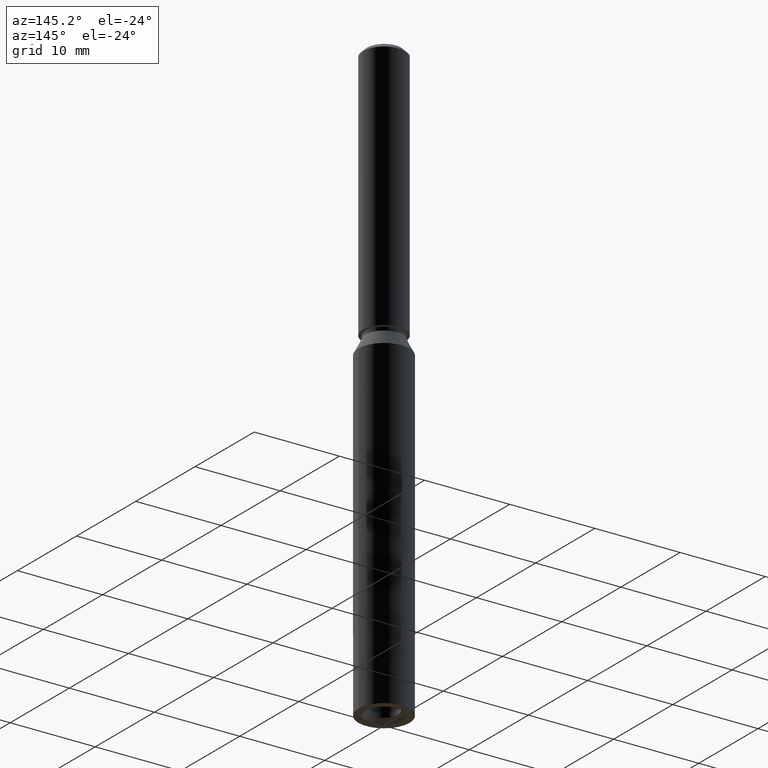
[diagram: clean part render]
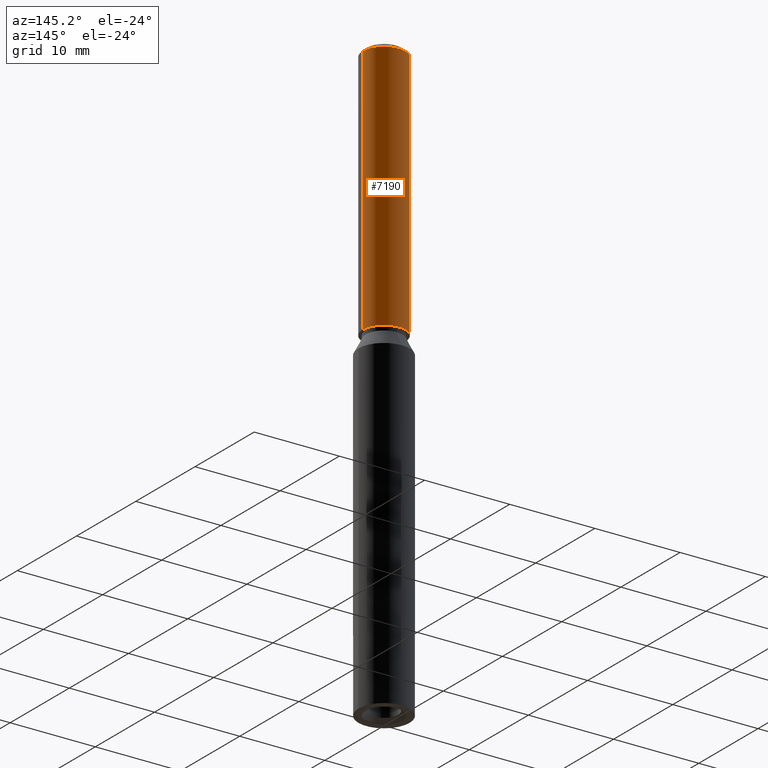
[diagram: same view with one face highlighted and labeled with its STEP entity id]
A machine part, auxiliary view. The second image highlights one B-rep face of the part: STEP entity #7190.
In plain terms, the highlighted cylindrical surface (edge-blend (fillet) strip) has radius 2.5 mm, axis along (-0, -0, -1).
Its self-contained STEP definition (entity closure, byte-faithful):
#124 = EDGE_CURVE ( 'NONE', #2619, #5358, #8713, .T. ) ;
#601 = EDGE_CURVE ( 'NONE', #5083, #13361, #2677, .T. ) ;
#1985 = EDGE_LOOP ( 'NONE', ( #13312, #11864, #8868, #2451 ) ) ;
#2425 = DIRECTION ( 'NONE',  ( 0.0000000000000000000, 1.000000000000000000, 0.0000000000000000000 ) ) ;
#2451 = ORIENTED_EDGE ( 'NONE', *, *, #6550, .F. ) ;
#2619 = VERTEX_POINT ( 'NONE', #8099 ) ;
#2677 = CIRCLE ( 'NONE', #9380, 2.500000000000000000 ) ;
#3255 = CARTESIAN_POINT ( 'NONE',  ( -2.500000000000000000, 0.0000000000000000000, 70.00000000000000000 ) ) ;
#5083 = VERTEX_POINT ( 'NONE', #13032 ) ;
#5324 = DIRECTION ( 'NONE',  ( -0.0000000000000000000, -0.0000000000000000000, -1.000000000000000000 ) ) ;
#5358 = VERTEX_POINT ( 'NONE', #8084 ) ;
#5600 = VECTOR ( 'NONE', #10133, 1000.000000000000000 ) ;
#5890 = AXIS2_PLACEMENT_3D ( 'NONE', #13693, #9173, #2425 ) ;
#6550 = EDGE_CURVE ( 'NONE', #5083, #2619, #8617, .T. ) ;
#7190 = ADVANCED_FACE ( 'NONE', ( #12145 ), #9461, .T. ) ;
#7575 = AXIS2_PLACEMENT_3D ( 'NONE', #14464, #8910, #8769 ) ;
#7838 = VECTOR ( 'NONE', #5324, 1000.000000000000000 ) ;
#8084 = CARTESIAN_POINT ( 'NONE',  ( 2.500000000000000000, 3.061616997868383100E-016, 40.10000000000000100 ) ) ;
#8099 = CARTESIAN_POINT ( 'NONE',  ( -2.500000000000000000, 0.0000000000000000000, 40.10000000000000100 ) ) ;
#8617 = LINE ( 'NONE', #3255, #5600 ) ;
#8713 = CIRCLE ( 'NONE', #5890, 2.500000000000000000 ) ;
#8769 = DIRECTION ( 'NONE',  ( -1.000000000000000000, 0.0000000000000000000, 0.0000000000000000000 ) ) ;
#8868 = ORIENTED_EDGE ( 'NONE', *, *, #124, .F. ) ;
#8910 = DIRECTION ( 'NONE',  ( -0.0000000000000000000, -0.0000000000000000000, -1.000000000000000000 ) ) ;
#9173 = DIRECTION ( 'NONE',  ( -0.0000000000000000000, 1.967742040464204400E-018, -1.000000000000000000 ) ) ;
#9380 = AXIS2_PLACEMENT_3D ( 'NONE', #13425, #13326, #13373 ) ;
#9461 = CYLINDRICAL_SURFACE ( 'NONE', #7575, 2.500000000000000000 ) ;
#10133 = DIRECTION ( 'NONE',  ( -0.0000000000000000000, -0.0000000000000000000, -1.000000000000000000 ) ) ;
#11195 = LINE ( 'NONE', #13393, #7838 ) ;
#11864 = ORIENTED_EDGE ( 'NONE', *, *, #12673, .T. ) ;
#12055 = CARTESIAN_POINT ( 'NONE',  ( 2.500000000000000000, 3.061616997868383100E-016, 69.50000000000001400 ) ) ;
#12145 = FACE_OUTER_BOUND ( 'NONE', #1985, .T. ) ;
#12673 = EDGE_CURVE ( 'NONE', #13361, #5358, #11195, .T. ) ;
#13032 = CARTESIAN_POINT ( 'NONE',  ( -2.500000000000000000, 0.0000000000000000000, 69.50000000000001400 ) ) ;
#13312 = ORIENTED_EDGE ( 'NONE', *, *, #601, .T. ) ;
#13326 = DIRECTION ( 'NONE',  ( 0.0000000000000000000, 0.0000000000000000000, -1.000000000000000000 ) ) ;
#13361 = VERTEX_POINT ( 'NONE', #12055 ) ;
#13373 = DIRECTION ( 'NONE',  ( 1.000000000000000000, 0.0000000000000000000, 0.0000000000000000000 ) ) ;
#13393 = CARTESIAN_POINT ( 'NONE',  ( 2.500000000000000000, 3.061616997868383100E-016, 70.00000000000000000 ) ) ;
#13425 = CARTESIAN_POINT ( 'NONE',  ( 0.0000000000000000000, 0.0000000000000000000, 69.50000000000001400 ) ) ;
#13693 = CARTESIAN_POINT ( 'NONE',  ( 0.0000000000000000000, 0.0000000000000000000, 40.10000000000000100 ) ) ;
#14464 = CARTESIAN_POINT ( 'NONE',  ( 0.0000000000000000000, 0.0000000000000000000, 70.00000000000000000 ) ) ;